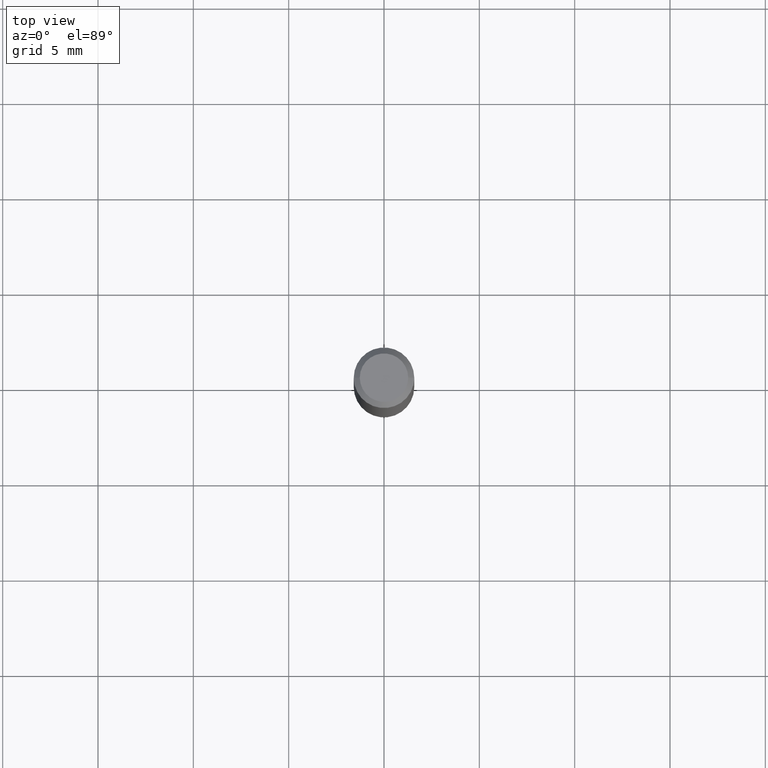
[diagram: clean part render]
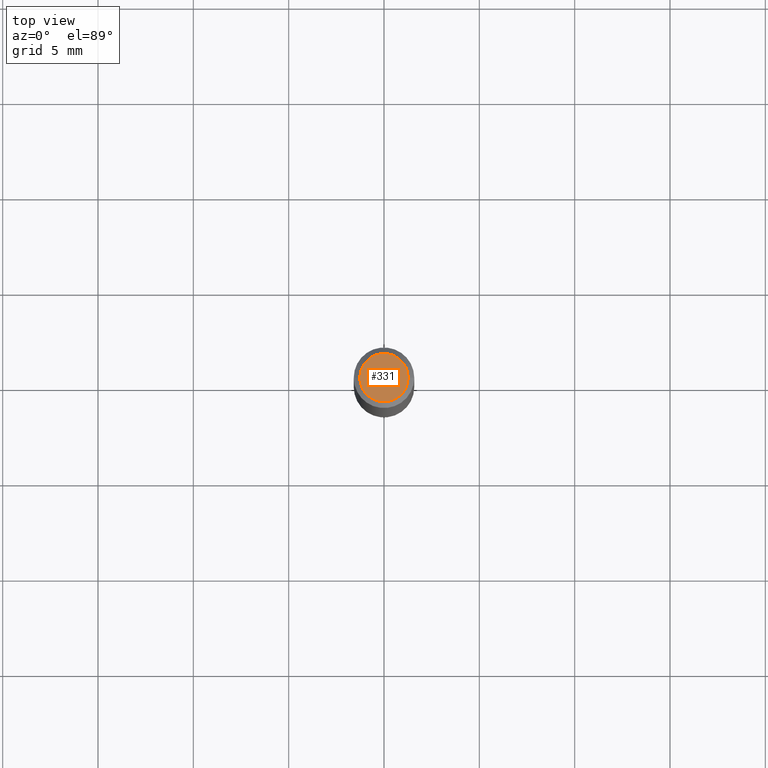
[diagram: same view with one face highlighted and labeled with its STEP entity id]
A machine part, top view. The second image highlights one B-rep face of the part: STEP entity #331.
In plain terms, the highlighted planar face has unit normal (0, -0, -1).
Its self-contained STEP definition (entity closure, byte-faithful):
#15 = CIRCLE ( 'NONE', #362, 0.04999999999999999584 ) ;
#54 = CARTESIAN_POINT ( 'NONE',  ( -4.132873053354867254E-48, 5.900647395337818946E-34, 1.690012582823346072E-19 ) ) ;
#56 = CARTESIAN_POINT ( 'NONE',  ( -8.265746106709734507E-48, 1.180129479067563789E-33, 3.380025165646692144E-19 ) ) ;
#61 = DIRECTION ( 'NONE',  ( -2.445468806185136597E-29, 3.491481338843145583E-15, 1.000000000000000000 ) ) ;
#64 = ORIENTED_EDGE ( 'NONE', *, *, #388, .T. ) ;
#111 = CARTESIAN_POINT ( 'NONE',  ( 0.04999999999999999584, -4.077247707424184705E-16, 3.380025165673154903E-19 ) ) ;
#142 = CIRCLE ( 'NONE', #174, 0.04999999999999999584 ) ;
#169 = DIRECTION ( 'NONE',  ( 1.000000000000000000, -6.982962677686265922E-15, 4.876194921942043128E-29 ) ) ;
#174 = AXIS2_PLACEMENT_3D ( 'NONE', #56, #471, #169 ) ;
#201 = ORIENTED_EDGE ( 'NONE', *, *, #322, .T. ) ;
#247 = CARTESIAN_POINT ( 'NONE',  ( -8.265746106709734507E-48, 1.180129479067563789E-33, 3.380025165646692144E-19 ) ) ;
#317 = PLANE ( 'NONE',  #407 ) ;
#322 = EDGE_CURVE ( 'NONE', #397, #449, #142, .T. ) ;
#323 = DIRECTION ( 'NONE',  ( -1.000000000000000000, 6.982962677686265922E-15, -4.876176775795935793E-29 ) ) ;
#331 = ADVANCED_FACE ( 'NONE', ( #425 ), #317, .F. ) ;
#347 = EDGE_LOOP ( 'NONE', ( #64, #201 ) ) ;
#359 = DIRECTION ( 'NONE',  ( 1.000000000000000000, -6.982962677686265922E-15, 4.876194921942043128E-29 ) ) ;
#362 = AXIS2_PLACEMENT_3D ( 'NONE', #247, #61, #359 ) ;
#388 = EDGE_CURVE ( 'NONE', #449, #397, #15, .T. ) ;
#393 = DIRECTION ( 'NONE',  ( 2.438088387897960049E-29, -3.491481338843145188E-15, -1.000000000000000000 ) ) ;
#397 = VERTEX_POINT ( 'NONE', #111 ) ;
#407 = AXIS2_PLACEMENT_3D ( 'NONE', #54, #393, #323 ) ;
#425 = FACE_OUTER_BOUND ( 'NONE', #347, .T. ) ;
#449 = VERTEX_POINT ( 'NONE', #479 ) ;
#471 = DIRECTION ( 'NONE',  ( -2.445468806185136597E-29, 3.491481338843145583E-15, 1.000000000000000000 ) ) ;
#479 = CARTESIAN_POINT ( 'NONE',  ( -0.04999999999999999584, 3.709698922520826725E-16, 3.380025165621512536E-19 ) ) ;